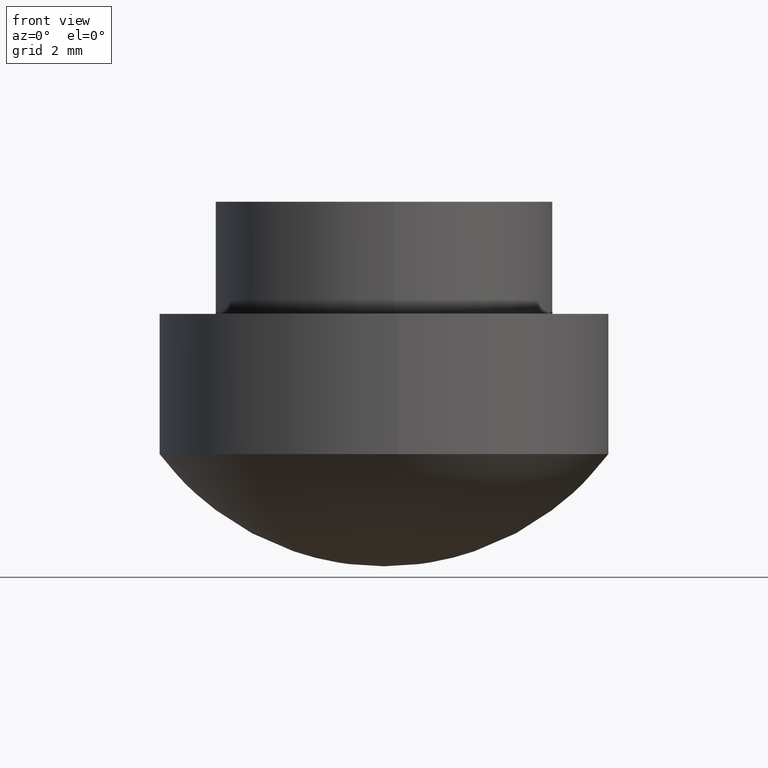
[diagram: clean part render]
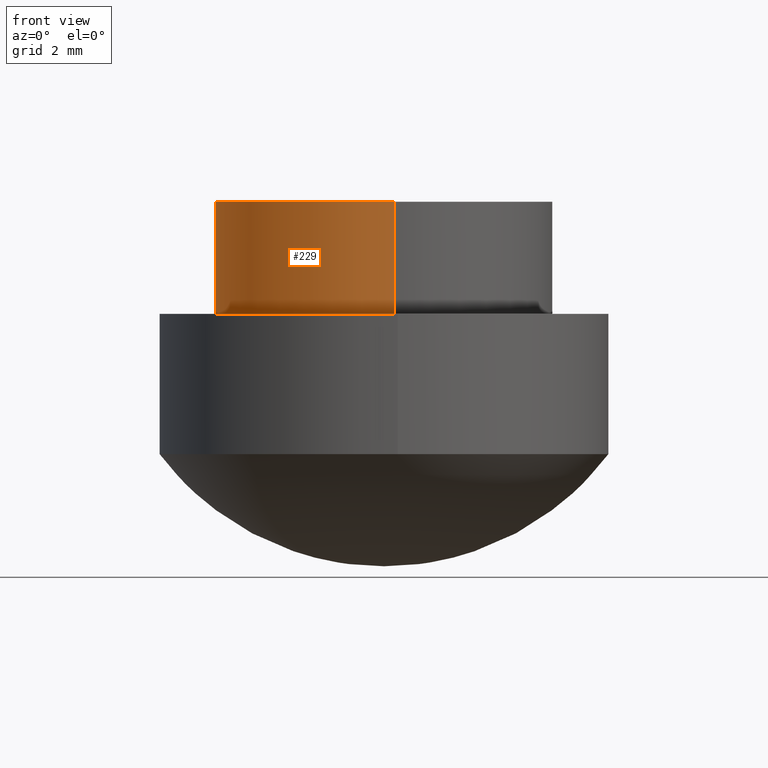
[diagram: same view with one face highlighted and labeled with its STEP entity id]
A machine part, front view. The second image highlights one B-rep face of the part: STEP entity #229.
In plain terms, the highlighted face is a freeform B-spline surface patch.
Its self-contained STEP definition (entity closure, byte-faithful):
#66=CARTESIAN_POINT('',(-0.708199855991939,5.958057818110003,13.0));
#67=VERTEX_POINT('',#66);
#85=CARTESIAN_POINT('',(0.366286036583908,-5.988809108610534,13.000000000000020));
#86=VERTEX_POINT('',#85);
#100=CARTESIAN_POINT('',(0.366286099267417,-5.988809104776754,9.0));
#101=VERTEX_POINT('',#100);
#102=CARTESIAN_POINT('',(0.366286036583908,-5.988809108610534,13.000000000000020));
#103=CARTESIAN_POINT('',(0.366286099267417,-5.988809104776754,9.0));
#104=QUASI_UNIFORM_CURVE('',1,(#102,#103),.UNSPECIFIED.,.F.,.U.);
#105=EDGE_CURVE('',#86,#101,#104,.T.);
#122=CARTESIAN_POINT('',(-0.708199922886695,5.958057810158673,9.0));
#123=VERTEX_POINT('',#122);
#139=CARTESIAN_POINT('',(-0.708199855991939,5.958057818110003,13.0));
#140=CARTESIAN_POINT('',(-0.708199922886695,5.958057810158673,9.0));
#141=QUASI_UNIFORM_CURVE('',1,(#139,#140),.UNSPECIFIED.,.F.,.U.);
#142=EDGE_CURVE('',#67,#123,#141,.T.);
#147=CARTESIAN_POINT('',(0.366291237209142,-5.988808790531200,13.100000000000000));
#148=CARTESIAN_POINT('',(-5.622517553322059,-6.355100027740342,13.100000000000001));
#149=CARTESIAN_POINT('',(-5.988808790531200,-0.366291237209142,13.100000000000000));
#150=CARTESIAN_POINT('',(-6.334717180395164,5.289260945037006,13.100000000000001));
#151=CARTESIAN_POINT('',(-0.708205407940551,5.958057158181998,13.100000000000000));
#152=CARTESIAN_POINT('',(0.366291237209142,-5.988808790531200,8.897499999999997));
#153=CARTESIAN_POINT('',(-5.622517553322059,-6.355100027740342,8.897499999999997));
#154=CARTESIAN_POINT('',(-5.988808790531200,-0.366291237209142,8.897499999999997));
#155=CARTESIAN_POINT('',(-6.334717180395164,5.289260945037006,8.897499999999997));
#156=CARTESIAN_POINT('',(-0.708205407940551,5.958057158181998,8.897499999999997));
#164=(BOUNDED_SURFACE()B_SPLINE_SURFACE(2,1,((#147,#152),(#148,#153),(#149,#154),(#150,#155),(#151,#156)),.UNSPECIFIED.,.F.,.F.,.U.)B_SPLINE_SURFACE_WITH_KNOTS((3,2,3),(2,2),(0.0,9.941125496954278,19.484605974030391),(0.0,4.202500000000004),.UNSPECIFIED.)GEOMETRIC_REPRESENTATION_ITEM()RATIONAL_B_SPLINE_SURFACE(((1.0,1.0),(0.707106781186548,0.707106781186548),(1.0,1.0),(0.718822509939086,0.718822509939086),(0.977505800795127,0.977505800795127)))REPRESENTATION_ITEM('')SURFACE());
#165=CARTESIAN_POINT('',(-6.0,0.0,13.0));
#166=VERTEX_POINT('',#165);
#167=CARTESIAN_POINT('',(-6.0,0.0,13.0));
#168=CARTESIAN_POINT('',(-6.000000000000001,5.329052156480185,13.000000000000002));
#169=CARTESIAN_POINT('',(-0.708199855991939,5.958057818110003,13.000000000000004));
#177=(BOUNDED_CURVE()B_SPLINE_CURVE(2,(#167,#168,#169),.UNSPECIFIED.,.F.,.U.)B_SPLINE_CURVE_WITH_KNOTS((3,3),(0.0,0.229562630999432),.UNSPECIFIED.)CURVE()GEOMETRIC_REPRESENTATION_ITEM()RATIONAL_B_SPLINE_CURVE((1.0,0.731050648349166,0.956027062862787))REPRESENTATION_ITEM(''));
#178=EDGE_CURVE('',#166,#67,#177,.T.);
#179=ORIENTED_EDGE('',*,*,#178,.T.);
#180=ORIENTED_EDGE('',*,*,#142,.T.);
#181=CARTESIAN_POINT('',(-6.0,0.0,9.0));
#182=VERTEX_POINT('',#181);
#183=CARTESIAN_POINT('',(-6.0,0.0,9.0));
#184=CARTESIAN_POINT('',(-6.000000000000001,5.329052096226471,9.000000000000002));
#185=CARTESIAN_POINT('',(-0.708199922886695,5.958057810158673,9.0));
#193=(BOUNDED_CURVE()B_SPLINE_CURVE(2,(#183,#184,#185),.UNSPECIFIED.,.F.,.U.)B_SPLINE_CURVE_WITH_KNOTS((3,3),(0.0,0.229562629101929),.UNSPECIFIED.)CURVE()GEOMETRIC_REPRESENTATION_ITEM()RATIONAL_B_SPLINE_CURVE((1.0,0.731050650572230,0.956027059143597))REPRESENTATION_ITEM(''));
#194=EDGE_CURVE('',#182,#123,#193,.T.);
#195=ORIENTED_EDGE('',*,*,#194,.F.);
#196=CARTESIAN_POINT('',(0.366286099267417,-5.988809104776754,9.0));
#197=CARTESIAN_POINT('',(0.183314003617696,-6.0,9.0));
#198=CARTESIAN_POINT('',(0.0,-6.0,9.0));
#199=CARTESIAN_POINT('',(-6.0,-6.0,9.000000000000002));
#200=CARTESIAN_POINT('',(-6.0,0.0,9.0));
#208=(BOUNDED_CURVE()B_SPLINE_CURVE(2,(#196,#197,#198,#199,#200),.UNSPECIFIED.,.F.,.U.)B_SPLINE_CURVE_WITH_KNOTS((3,2,3),(0.739333110273986,0.750000000000000,1.0),.UNSPECIFIED.)CURVE()GEOMETRIC_REPRESENTATION_ITEM()RATIONAL_B_SPLINE_CURVE((0.976072358934200,0.987502961333678,1.0,0.707106781186548,1.0))REPRESENTATION_ITEM(''));
#209=EDGE_CURVE('',#101,#182,#208,.T.);
#210=ORIENTED_EDGE('',*,*,#209,.F.);
#211=ORIENTED_EDGE('',*,*,#105,.F.);
#212=CARTESIAN_POINT('',(0.366286036583908,-5.988809108610534,13.000000000000021));
#213=CARTESIAN_POINT('',(0.183313972188067,-6.0,13.000000000000002));
#214=CARTESIAN_POINT('',(0.0,-6.0,13.0));
#215=CARTESIAN_POINT('',(-6.0,-6.0,13.000000000000002));
#216=CARTESIAN_POINT('',(-6.0,0.0,13.0));
#224=(BOUNDED_CURVE()B_SPLINE_CURVE(2,(#212,#213,#214,#215,#216),.UNSPECIFIED.,.F.,.U.)B_SPLINE_CURVE_WITH_KNOTS((3,2,3),(0.739333112079995,0.750000000000000,1.0),.UNSPECIFIED.)CURVE()GEOMETRIC_REPRESENTATION_ITEM()RATIONAL_B_SPLINE_CURVE((0.976072362804825,0.987502963449549,1.0,0.707106781186548,1.0))REPRESENTATION_ITEM(''));
#225=EDGE_CURVE('',#86,#166,#224,.T.);
#226=ORIENTED_EDGE('',*,*,#225,.T.);
#227=EDGE_LOOP('',(#179,#180,#195,#210,#211,#226));
#228=FACE_OUTER_BOUND('',#227,.T.);
#229=ADVANCED_FACE('',(#228),#164,.T.);